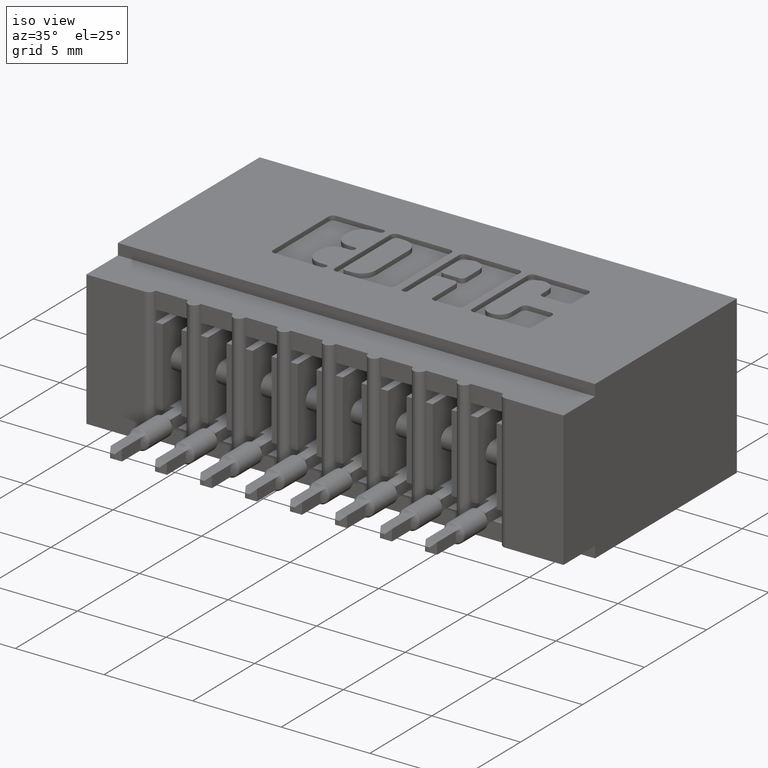
[diagram: clean part render]
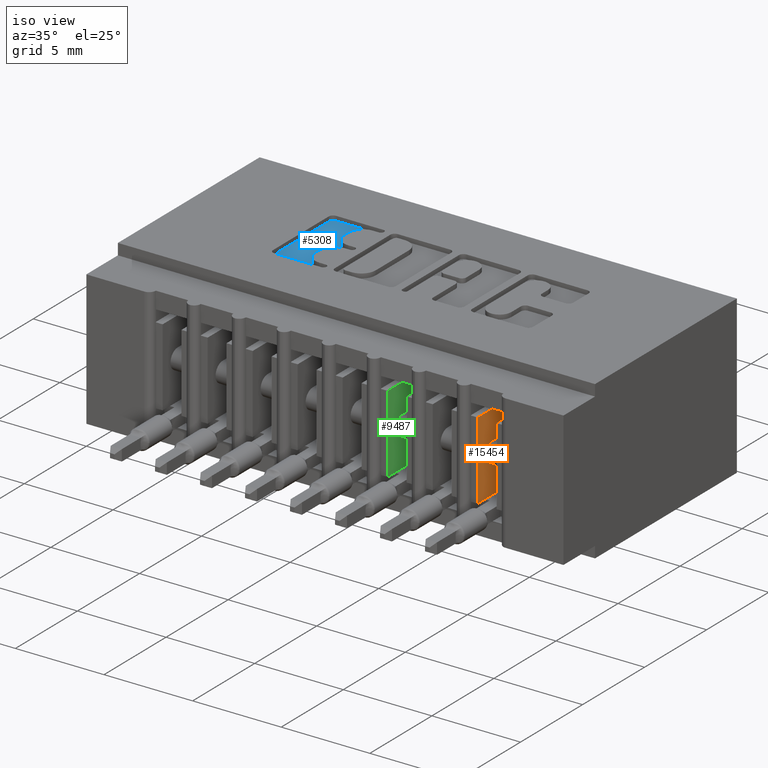
[diagram: same view with three faces highlighted in distinct colors, each labeled with its STEP entity id]
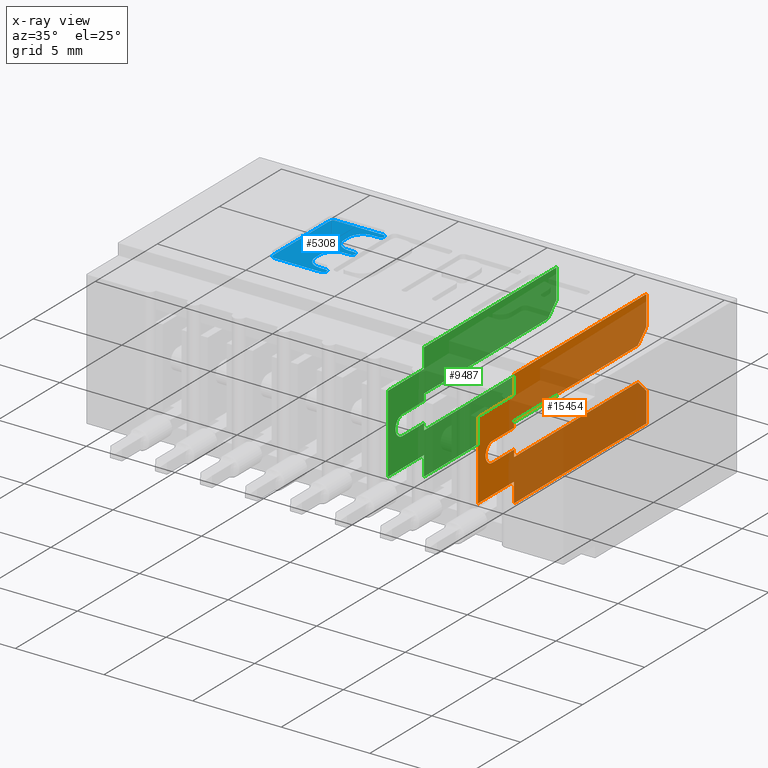
[diagram: x-ray of the same camera — body ghosted, the three highlighted faces saturated]
A machine part, iso view with three faces highlighted in distinct colors.
The next image is the same camera in x-ray (body ghosted, the three faces saturated) — at least one of them is partly hidden behind the body in this view.
Their STEP definitions:

[orange] entity #15454 — the highlighted planar face has unit normal (1, -0, -0).
#189 = ORIENTED_EDGE ( 'NONE', *, *, #17398, .T. ) ;
#252 = CARTESIAN_POINT ( 'NONE',  ( 0.8589999999999996500, 0.01500000000000002700, -0.2615000000000001800 ) ) ;
#352 = VERTEX_POINT ( 'NONE', #17684 ) ;
#543 = CARTESIAN_POINT ( 'NONE',  ( 0.8589999999999996500, 0.1300000000000000000, -0.08850000000000006500 ) ) ;
#696 = VERTEX_POINT ( 'NONE', #1882 ) ;
#870 = VECTOR ( 'NONE', #13364, 39.37007874015748100 ) ;
#1051 = DIRECTION ( 'NONE',  ( 6.851308626328820700E-031, 1.000000000000000000, 1.484699996556664600E-015 ) ) ;
#1064 = VECTOR ( 'NONE', #2760, 39.37007874015748100 ) ;
#1159 = EDGE_CURVE ( 'NONE', #11859, #6540, #2328, .T. ) ;
#1367 = VERTEX_POINT ( 'NONE', #9956 ) ;
#1371 = CARTESIAN_POINT ( 'NONE',  ( 0.8589999999999997600, 0.1300000000000000000, -3.256820044686565700E-017 ) ) ;
#1472 = CARTESIAN_POINT ( 'NONE',  ( 0.8589999999999997600, 0.1300000000000000000, -0.04499999999999988700 ) ) ;
#1611 = VERTEX_POINT ( 'NONE', #8786 ) ;
#1614 = EDGE_CURVE ( 'NONE', #696, #8934, #1870, .T. ) ;
#1870 = CIRCLE ( 'NONE', #4698, 0.02199999999999996400 ) ;
#1882 = CARTESIAN_POINT ( 'NONE',  ( 0.8589999999999997600, 0.06200000000000000000, -0.1969999999999994500 ) ) ;
#2007 = CARTESIAN_POINT ( 'NONE',  ( 0.8589999999999996500, 0.1300000000000000000, -0.2874999999999999200 ) ) ;
#2075 = VECTOR ( 'NONE', #12269, 39.37007874015748100 ) ;
#2328 = LINE ( 'NONE', #12166, #9254 ) ;
#2467 = EDGE_CURVE ( 'NONE', #4367, #1611, #9199, .T. ) ;
#2517 = VECTOR ( 'NONE', #16089, 39.37007874015748100 ) ;
#2760 = DIRECTION ( 'NONE',  ( 2.078529941618992500E-016, 0.0000000000000000000, 1.000000000000000000 ) ) ;
#3063 = CARTESIAN_POINT ( 'NONE',  ( 0.8589999999999997600, 0.5230000000000000200, -0.2120000000000002700 ) ) ;
#3112 = CARTESIAN_POINT ( 'NONE',  ( 0.8589999999999997600, 0.1300000000000001200, -0.1380000000000002600 ) ) ;
#3123 = LINE ( 'NONE', #15578, #16875 ) ;
#3259 = DIRECTION ( 'NONE',  ( 1.232595164407830900E-032, 1.000000000000000000, 0.0000000000000000000 ) ) ;
#3265 = CARTESIAN_POINT ( 'NONE',  ( 0.8590000000006827700, 0.06200000000000000600, -0.1749999999999994600 ) ) ;
#3342 = LINE ( 'NONE', #5843, #6587 ) ;
#3529 = ORIENTED_EDGE ( 'NONE', *, *, #4328, .T. ) ;
#3773 = CARTESIAN_POINT ( 'NONE',  ( 0.8589999999999997600, 0.5500000000000000400, -3.256820044686565700E-017 ) ) ;
#3923 = DIRECTION ( 'NONE',  ( 6.302441459749744600E-032, 1.000000000000000000, 2.439149994343092200E-016 ) ) ;
#3983 = VERTEX_POINT ( 'NONE', #7744 ) ;
#4022 = EDGE_CURVE ( 'NONE', #10255, #696, #12038, .T. ) ;
#4328 = EDGE_CURVE ( 'NONE', #14862, #10650, #9684, .T. ) ;
#4367 = VERTEX_POINT ( 'NONE', #3063 ) ;
#4686 = DIRECTION ( 'NONE',  ( 0.0000000000000000000, 0.0000000000000000000, -1.000000000000000000 ) ) ;
#4698 = AXIS2_PLACEMENT_3D ( 'NONE', #3265, #12898, #4686 ) ;
#4756 = VERTEX_POINT ( 'NONE', #8606 ) ;
#4802 = ORIENTED_EDGE ( 'NONE', *, *, #5040, .T. ) ;
#4819 = CARTESIAN_POINT ( 'NONE',  ( 0.8589999999999996500, 0.1300000000000000000, -0.06250000000000015300 ) ) ;
#4899 = ORIENTED_EDGE ( 'NONE', *, *, #16648, .T. ) ;
#5024 = DIRECTION ( 'NONE',  ( 9.205323678943180200E-032, -1.000000000000000000, 5.021779400118136700E-016 ) ) ;
#5040 = EDGE_CURVE ( 'NONE', #4756, #1367, #5749, .T. ) ;
#5069 = DIRECTION ( 'NONE',  ( 2.078529941618992500E-016, 0.0000000000000000000, 1.000000000000000000 ) ) ;
#5406 = ORIENTED_EDGE ( 'NONE', *, *, #2467, .F. ) ;
#5668 = LINE ( 'NONE', #4819, #8928 ) ;
#5696 = EDGE_CURVE ( 'NONE', #6540, #1367, #6616, .T. ) ;
#5749 = LINE ( 'NONE', #3773, #2517 ) ;
#5788 = CARTESIAN_POINT ( 'NONE',  ( 0.8589999999999996500, 0.1300000000000000000, -0.2874999999999999200 ) ) ;
#5843 = CARTESIAN_POINT ( 'NONE',  ( 0.8589999999999997600, 0.5500000000000000400, -0.1109999999999999500 ) ) ;
#5853 = LINE ( 'NONE', #17537, #9558 ) ;
#5995 = VECTOR ( 'NONE', #9968, 39.37007874015748100 ) ;
#6018 = VERTEX_POINT ( 'NONE', #12802 ) ;
#6118 = DIRECTION ( 'NONE',  ( -2.078529941618992500E-016, 0.0000000000000000000, -1.000000000000000000 ) ) ;
#6124 = LINE ( 'NONE', #11022, #13426 ) ;
#6204 = DIRECTION ( 'NONE',  ( 8.519276487518544600E-016, 0.0000000000000000000, -1.000000000000000000 ) ) ;
#6274 = EDGE_CURVE ( 'NONE', #10487, #13112, #12178, .T. ) ;
#6314 = ORIENTED_EDGE ( 'NONE', *, *, #12276, .F. ) ;
#6451 = EDGE_CURVE ( 'NONE', #4367, #6018, #9443, .T. ) ;
#6540 = VERTEX_POINT ( 'NONE', #1472 ) ;
#6587 = VECTOR ( 'NONE', #10034, 39.37007874015748900 ) ;
#6595 = DIRECTION ( 'NONE',  ( 2.078529941618992500E-016, 2.661669305054499900E-031, 1.000000000000000000 ) ) ;
#6616 = LINE ( 'NONE', #10804, #17125 ) ;
#6819 = LINE ( 'NONE', #17688, #16895 ) ;
#7406 = ORIENTED_EDGE ( 'NONE', *, *, #8372, .F. ) ;
#7447 = DIRECTION ( 'NONE',  ( 4.110785175797292000E-031, -1.000000000000000000, 8.908199979339986800E-016 ) ) ;
#7622 = ORIENTED_EDGE ( 'NONE', *, *, #5696, .F. ) ;
#7744 = CARTESIAN_POINT ( 'NONE',  ( 0.8589999999999996500, 0.01499999999999998900, -0.08849999999999995400 ) ) ;
#7795 = EDGE_LOOP ( 'NONE', ( #16482, #16188, #189, #6314, #4802, #7622, #8647, #15569, #12215, #7406, #4899, #3529, #11755, #16955, #13866, #5406, #8256, #10412, #16402, #17408 ) ) ;
#7802 = CARTESIAN_POINT ( 'NONE',  ( 0.8590000000006827700, 0.1299999999999999200, -0.1969999999999995100 ) ) ;
#8100 = VECTOR ( 'NONE', #5069, 39.37007874015748100 ) ;
#8256 = ORIENTED_EDGE ( 'NONE', *, *, #6451, .T. ) ;
#8319 = DIRECTION ( 'NONE',  ( -1.469742616618067400E-016, 0.7071067811865479100, -0.7071067811865470200 ) ) ;
#8372 = EDGE_CURVE ( 'NONE', #9587, #3983, #11272, .T. ) ;
#8606 = CARTESIAN_POINT ( 'NONE',  ( 0.8589999999999997600, 0.5500000000000000400, -0.1109999999999999200 ) ) ;
#8647 = ORIENTED_EDGE ( 'NONE', *, *, #1159, .F. ) ;
#8757 = CARTESIAN_POINT ( 'NONE',  ( 0.8589999999999996500, 0.1300000000000000600, -0.2615000000000000100 ) ) ;
#8786 = CARTESIAN_POINT ( 'NONE',  ( 0.8589999999999997600, 0.5500000000000000400, -0.2389999999999999100 ) ) ;
#8871 = VECTOR ( 'NONE', #3259, 39.37007874015748100 ) ;
#8928 = VECTOR ( 'NONE', #6204, 39.37007874015748100 ) ;
#8934 = VERTEX_POINT ( 'NONE', #13760 ) ;
#9199 = LINE ( 'NONE', #12385, #16047 ) ;
#9233 = CARTESIAN_POINT ( 'NONE',  ( 0.8589999999999997600, 0.1300000000000001200, -0.1969999999999995100 ) ) ;
#9254 = VECTOR ( 'NONE', #14901, 39.37007874015748100 ) ;
#9310 = LINE ( 'NONE', #10152, #8871 ) ;
#9443 = LINE ( 'NONE', #10916, #2075 ) ;
#9558 = VECTOR ( 'NONE', #1051, 39.37007874015748100 ) ;
#9587 = VERTEX_POINT ( 'NONE', #252 ) ;
#9684 = LINE ( 'NONE', #5788, #5995 ) ;
#9941 = CARTESIAN_POINT ( 'NONE',  ( 0.8589999999962069100, 0.1299999999999999200, -0.1529999999999995000 ) ) ;
#9956 = CARTESIAN_POINT ( 'NONE',  ( 0.8589999999999997600, 0.5500000000000000400, -0.04499999999999978300 ) ) ;
#9968 = DIRECTION ( 'NONE',  ( -4.614608097405849300E-016, -1.313388458492439000E-015, -1.000000000000000000 ) ) ;
#9988 = EDGE_CURVE ( 'NONE', #6018, #10255, #6819, .T. ) ;
#10034 = DIRECTION ( 'NONE',  ( -1.469742616618067900E-016, -0.7071067811865476800, -0.7071067811865472400 ) ) ;
#10152 = CARTESIAN_POINT ( 'NONE',  ( 0.8589999999999997600, 0.1300000000000001200, -0.1380000000000002600 ) ) ;
#10255 = VERTEX_POINT ( 'NONE', #9233 ) ;
#10412 = ORIENTED_EDGE ( 'NONE', *, *, #9988, .T. ) ;
#10487 = VERTEX_POINT ( 'NONE', #9941 ) ;
#10650 = VERTEX_POINT ( 'NONE', #2007 ) ;
#10763 = CARTESIAN_POINT ( 'NONE',  ( 0.8589999999999997600, 0.01499999999999999400, -3.256820044686565700E-017 ) ) ;
#10804 = CARTESIAN_POINT ( 'NONE',  ( 0.8589999999999997600, 1.097617497454388500E-017, -0.04499999999999992200 ) ) ;
#10899 = DIRECTION ( 'NONE',  ( 2.078529941618992500E-016, 0.0000000000000000000, 1.000000000000000000 ) ) ;
#10916 = CARTESIAN_POINT ( 'NONE',  ( 0.8589999999999997600, 0.1300000000000001200, -0.2120000000000002700 ) ) ;
#11010 = CARTESIAN_POINT ( 'NONE',  ( 0.8589999999999996500, 0.1300000000000000000, -0.3049999999999999900 ) ) ;
#11022 = CARTESIAN_POINT ( 'NONE',  ( 0.8589999999999997600, 0.5500000000000000400, -3.256820044686565700E-017 ) ) ;
#11118 = EDGE_CURVE ( 'NONE', #11471, #17331, #3123, .T. ) ;
#11259 = VECTOR ( 'NONE', #7447, 39.37007874015748100 ) ;
#11272 = LINE ( 'NONE', #10763, #14459 ) ;
#11471 = VERTEX_POINT ( 'NONE', #11010 ) ;
#11680 = LINE ( 'NONE', #543, #11259 ) ;
#11755 = ORIENTED_EDGE ( 'NONE', *, *, #14589, .F. ) ;
#11859 = VERTEX_POINT ( 'NONE', #17212 ) ;
#11946 = FACE_OUTER_BOUND ( 'NONE', #7795, .T. ) ;
#12038 = LINE ( 'NONE', #7802, #15224 ) ;
#12087 = LINE ( 'NONE', #1371, #1064 ) ;
#12166 = CARTESIAN_POINT ( 'NONE',  ( 0.8589999999999997600, 0.1300000000000000000, -3.256820044686565700E-017 ) ) ;
#12178 = LINE ( 'NONE', #16061, #8100 ) ;
#12215 = ORIENTED_EDGE ( 'NONE', *, *, #13722, .T. ) ;
#12269 = DIRECTION ( 'NONE',  ( -1.232595164407830900E-032, -1.000000000000000000, 0.0000000000000000000 ) ) ;
#12276 = EDGE_CURVE ( 'NONE', #4756, #13140, #3342, .T. ) ;
#12317 = LINE ( 'NONE', #16131, #870 ) ;
#12385 = CARTESIAN_POINT ( 'NONE',  ( 0.8589999999999997600, 0.5230000000000000200, -0.2119999999999999400 ) ) ;
#12739 = EDGE_CURVE ( 'NONE', #17331, #1611, #6124, .T. ) ;
#12802 = CARTESIAN_POINT ( 'NONE',  ( 0.8589999999999997600, 0.1300000000000001200, -0.2120000000000002700 ) ) ;
#12898 = DIRECTION ( 'NONE',  ( -1.000000000000000000, 1.232595164407830900E-032, 2.078529941618992500E-016 ) ) ;
#12965 = PLANE ( 'NONE',  #15802 ) ;
#13112 = VERTEX_POINT ( 'NONE', #3112 ) ;
#13140 = VERTEX_POINT ( 'NONE', #16927 ) ;
#13234 = EDGE_CURVE ( 'NONE', #11859, #352, #5668, .T. ) ;
#13364 = DIRECTION ( 'NONE',  ( 1.688947342943434700E-031, 1.000000000000000000, 7.532669100177206500E-016 ) ) ;
#13426 = VECTOR ( 'NONE', #16512, 39.37007874015748100 ) ;
#13722 = EDGE_CURVE ( 'NONE', #352, #3983, #11680, .T. ) ;
#13760 = CARTESIAN_POINT ( 'NONE',  ( 0.8590000000006827700, 0.06200000000000000000, -0.1529999999999995000 ) ) ;
#13866 = ORIENTED_EDGE ( 'NONE', *, *, #12739, .T. ) ;
#13896 = EDGE_CURVE ( 'NONE', #8934, #10487, #12317, .T. ) ;
#14075 = CARTESIAN_POINT ( 'NONE',  ( 0.8589999999999996500, 0.5500000000000000400, -0.3050000000000001000 ) ) ;
#14340 = DIRECTION ( 'NONE',  ( 1.000000000000000000, -1.232595164407830900E-032, -2.078529941618992500E-016 ) ) ;
#14459 = VECTOR ( 'NONE', #6595, 39.37007874015748100 ) ;
#14589 = EDGE_CURVE ( 'NONE', #11471, #10650, #12087, .T. ) ;
#14862 = VERTEX_POINT ( 'NONE', #8757 ) ;
#14901 = DIRECTION ( 'NONE',  ( 2.078529941618992500E-016, 0.0000000000000000000, 1.000000000000000000 ) ) ;
#15224 = VECTOR ( 'NONE', #5024, 39.37007874015748100 ) ;
#15454 = ADVANCED_FACE ( 'NONE', ( #11946 ), #12965, .T. ) ;
#15569 = ORIENTED_EDGE ( 'NONE', *, *, #13234, .T. ) ;
#15578 = CARTESIAN_POINT ( 'NONE',  ( 0.8589999999999996500, -9.919209976995239000E-017, -0.3049999999999999400 ) ) ;
#15802 = AXIS2_PLACEMENT_3D ( 'NONE', #17031, #14340, #6118 ) ;
#16047 = VECTOR ( 'NONE', #8319, 39.37007874015748900 ) ;
#16061 = CARTESIAN_POINT ( 'NONE',  ( 0.8589999999999997600, 0.1300000000000001200, -0.1380000000000004000 ) ) ;
#16089 = DIRECTION ( 'NONE',  ( 2.078529941618992500E-016, 0.0000000000000000000, 1.000000000000000000 ) ) ;
#16131 = CARTESIAN_POINT ( 'NONE',  ( 0.8590000000006827700, 0.1299999999999999200, -0.1529999999999995000 ) ) ;
#16188 = ORIENTED_EDGE ( 'NONE', *, *, #6274, .T. ) ;
#16402 = ORIENTED_EDGE ( 'NONE', *, *, #4022, .T. ) ;
#16482 = ORIENTED_EDGE ( 'NONE', *, *, #13896, .T. ) ;
#16512 = DIRECTION ( 'NONE',  ( 2.078529941618992500E-016, 0.0000000000000000000, 1.000000000000000000 ) ) ;
#16648 = EDGE_CURVE ( 'NONE', #9587, #14862, #5853, .T. ) ;
#16875 = VECTOR ( 'NONE', #16945, 39.37007874015748100 ) ;
#16895 = VECTOR ( 'NONE', #10899, 39.37007874015748100 ) ;
#16927 = CARTESIAN_POINT ( 'NONE',  ( 0.8589999999999997600, 0.5230000000000000200, -0.1379999999999999300 ) ) ;
#16945 = DIRECTION ( 'NONE',  ( -5.527199896048053900E-032, 1.000000000000000000, -3.252199992457456200E-016 ) ) ;
#16955 = ORIENTED_EDGE ( 'NONE', *, *, #11118, .T. ) ;
#17031 = CARTESIAN_POINT ( 'NONE',  ( 0.8589999999999997600, -2.218671295934091900E-033, -3.256820044686565700E-017 ) ) ;
#17125 = VECTOR ( 'NONE', #3923, 39.37007874015748100 ) ;
#17212 = CARTESIAN_POINT ( 'NONE',  ( 0.8589999999999996500, 0.1300000000000000000, -0.06250000000000015300 ) ) ;
#17331 = VERTEX_POINT ( 'NONE', #14075 ) ;
#17398 = EDGE_CURVE ( 'NONE', #13112, #13140, #9310, .T. ) ;
#17408 = ORIENTED_EDGE ( 'NONE', *, *, #1614, .T. ) ;
#17537 = CARTESIAN_POINT ( 'NONE',  ( 0.8589999999999996500, 0.1300000000000000600, -0.2615000000000000100 ) ) ;
#17684 = CARTESIAN_POINT ( 'NONE',  ( 0.8589999999999996500, 0.1300000000000000000, -0.08850000000000006500 ) ) ;
#17688 = CARTESIAN_POINT ( 'NONE',  ( 0.8589999999999997600, 0.1300000000000001200, -0.1380000000000004000 ) ) ;

[blue] entity #5308 — the highlighted planar face has unit normal (0, 0, 1).
#162 = DIRECTION ( 'NONE',  ( 0.0000000000000000000, 1.000000000000000000, -0.0000000000000000000 ) ) ;
#213 = VERTEX_POINT ( 'NONE', #3713 ) ;
#256 = EDGE_LOOP ( 'NONE', ( #16182, #4385, #9080, #1798, #7262, #15123, #7137, #1749, #14169, #14689, #9727, #17456, #3585, #5013, #2251, #9899, #1148, #8575, #2395, #8660, #9141 ) ) ;
#537 = CARTESIAN_POINT ( 'NONE',  ( 0.3631336065353355000, 0.2337142671046480400, -0.01000000000000000000 ) ) ;
#721 = DIRECTION ( 'NONE',  ( 1.000000000000000000, 0.0000000000000000000, 0.0000000000000000000 ) ) ;
#885 = AXIS2_PLACEMENT_3D ( 'NONE', #17210, #9029, #721 ) ;
#1148 = ORIENTED_EDGE ( 'NONE', *, *, #2095, .T. ) ;
#1288 = VERTEX_POINT ( 'NONE', #1476 ) ;
#1330 = VERTEX_POINT ( 'NONE', #1530 ) ;
#1437 = AXIS2_PLACEMENT_3D ( 'NONE', #11960, #3708, #13322 ) ;
#1476 = CARTESIAN_POINT ( 'NONE',  ( 0.2490264404161154600, 0.2366589681657900200, -0.01000000000000000000 ) ) ;
#1530 = CARTESIAN_POINT ( 'NONE',  ( 0.3700045756779735700, 0.3250000000000204400, -0.01000000000000000000 ) ) ;
#1562 = PLANE ( 'NONE',  #3329 ) ;
#1608 = VERTEX_POINT ( 'NONE', #16956 ) ;
#1721 = VERTEX_POINT ( 'NONE', #7617 ) ;
#1749 = ORIENTED_EDGE ( 'NONE', *, *, #7469, .T. ) ;
#1798 = ORIENTED_EDGE ( 'NONE', *, *, #13772, .T. ) ;
#1802 = CIRCLE ( 'NONE', #14605, 0.03141014465215624000 ) ;
#1804 = CIRCLE ( 'NONE', #12882, 0.006870969142662229500 ) ;
#1845 = FACE_OUTER_BOUND ( 'NONE', #256, .T. ) ;
#1851 = VECTOR ( 'NONE', #16010, 39.37007874015748100 ) ;
#1893 = DIRECTION ( 'NONE',  ( 1.000000000000000000, 0.0000000000000000000, 0.0000000000000000000 ) ) ;
#1938 = DIRECTION ( 'NONE',  ( 1.000000000000000000, 0.0000000000000000000, 0.0000000000000000000 ) ) ;
#1958 = VERTEX_POINT ( 'NONE', #15387 ) ;
#2095 = EDGE_CURVE ( 'NONE', #13812, #1330, #5100, .T. ) ;
#2148 = CARTESIAN_POINT ( 'NONE',  ( 0.3700045756779977200, 0.2337142671046480400, -0.01000000000000000000 ) ) ;
#2230 = LINE ( 'NONE', #12473, #12351 ) ;
#2251 = ORIENTED_EDGE ( 'NONE', *, *, #12591, .F. ) ;
#2340 = EDGE_CURVE ( 'NONE', #12395, #213, #12199, .T. ) ;
#2392 = EDGE_CURVE ( 'NONE', #12395, #4560, #17324, .T. ) ;
#2395 = ORIENTED_EDGE ( 'NONE', *, *, #17642, .T. ) ;
#2524 = DIRECTION ( 'NONE',  ( 1.000000000000000000, 0.0000000000000000000, 0.0000000000000000000 ) ) ;
#2538 = CARTESIAN_POINT ( 'NONE',  ( 0.0000000000000000000, 0.3318709691426839900, -0.01000000000000000000 ) ) ;
#2756 = AXIS2_PLACEMENT_3D ( 'NONE', #11374, #3108, #12731 ) ;
#2768 = VERTEX_POINT ( 'NONE', #6241 ) ;
#2813 = DIRECTION ( 'NONE',  ( -1.000000000000000000, -1.189163988687022500E-013, 0.0000000000000000000 ) ) ;
#2823 = EDGE_CURVE ( 'NONE', #1330, #1721, #9949, .T. ) ;
#2923 = DIRECTION ( 'NONE',  ( 1.000000000000000000, 7.203446383881649800E-015, 0.0000000000000000000 ) ) ;
#2963 = CARTESIAN_POINT ( 'NONE',  ( 0.0000000000000000000, 0.0000000000000000000, -0.01000000000000000000 ) ) ;
#3028 = CARTESIAN_POINT ( 'NONE',  ( 0.3631336065353355000, 0.2337142671046480400, -0.01000000000000000000 ) ) ;
#3108 = DIRECTION ( 'NONE',  ( -0.0000000000000000000, 0.0000000000000000000, 1.000000000000000000 ) ) ;
#3329 = AXIS2_PLACEMENT_3D ( 'NONE', #2963, #13955, #5745 ) ;
#3585 = ORIENTED_EDGE ( 'NONE', *, *, #4344, .F. ) ;
#3606 = CARTESIAN_POINT ( 'NONE',  ( 0.2588421106199381100, 0.4133410318342102300, -0.01000000000000000000 ) ) ;
#3708 = DIRECTION ( 'NONE',  ( -0.0000000000000000000, 0.0000000000000000000, 1.000000000000000000 ) ) ;
#3713 = CARTESIAN_POINT ( 'NONE',  ( 0.3631336065353514800, 0.4094147637527357800, -0.01000000000000000000 ) ) ;
#3906 = CARTESIAN_POINT ( 'NONE',  ( 0.3496370600050841000, 0.3632811137948584500, -0.01000000000000000000 ) ) ;
#3924 = DIRECTION ( 'NONE',  ( -1.000000000000000000, 0.0000000000000000000, 0.0000000000000000000 ) ) ;
#4307 = CARTESIAN_POINT ( 'NONE',  ( 0.3182269153529278500, 0.0000000000000000000, -0.01000000000000000000 ) ) ;
#4344 = EDGE_CURVE ( 'NONE', #15336, #11464, #13293, .T. ) ;
#4385 = ORIENTED_EDGE ( 'NONE', *, *, #2340, .T. ) ;
#4441 = DIRECTION ( 'NONE',  ( 1.000000000000000000, 0.0000000000000000000, 0.0000000000000000000 ) ) ;
#4445 = VECTOR ( 'NONE', #2813, 39.37007874015748100 ) ;
#4477 = VECTOR ( 'NONE', #2923, 39.37007874015748100 ) ;
#4505 = CARTESIAN_POINT ( 'NONE',  ( 0.3182269153529278500, 0.2719953808994904900, -0.01000000000000000000 ) ) ;
#4532 = VECTOR ( 'NONE', #3924, 39.37007874015748100 ) ;
#4560 = VERTEX_POINT ( 'NONE', #4833 ) ;
#4688 = EDGE_CURVE ( 'NONE', #16870, #2768, #8150, .T. ) ;
#4833 = CARTESIAN_POINT ( 'NONE',  ( 0.3182269153529096500, 0.3780046191005198600, -0.01000000000000000000 ) ) ;
#4903 = EDGE_CURVE ( 'NONE', #10608, #13812, #5117, .T. ) ;
#4979 = DIRECTION ( 'NONE',  ( 1.000000000000000000, 0.0000000000000000000, 0.0000000000000000000 ) ) ;
#5013 = ORIENTED_EDGE ( 'NONE', *, *, #8028, .T. ) ;
#5100 = CIRCLE ( 'NONE', #5257, 0.006870969142663527000 ) ;
#5117 = LINE ( 'NONE', #12904, #12010 ) ;
#5177 = CARTESIAN_POINT ( 'NONE',  ( 0.3496370600050841000, 0.2867188862052006400, -0.01000000000000000000 ) ) ;
#5231 = CARTESIAN_POINT ( 'NONE',  ( 0.0000000000000000000, 0.4094147637527357800, -0.01000000000000000000 ) ) ;
#5257 = AXIS2_PLACEMENT_3D ( 'NONE', #15689, #7482, #17059 ) ;
#5304 = DIRECTION ( 'NONE',  ( 1.000000000000000000, 0.0000000000000000000, 0.0000000000000000000 ) ) ;
#5308 = ADVANCED_FACE ( 'NONE', ( #1845 ), #1562, .T. ) ;
#5400 = VERTEX_POINT ( 'NONE', #7429 ) ;
#5409 = DIRECTION ( 'NONE',  ( -0.0000000000000000000, 0.0000000000000000000, 1.000000000000000000 ) ) ;
#5502 = VERTEX_POINT ( 'NONE', #9015 ) ;
#5566 = EDGE_CURVE ( 'NONE', #10844, #1288, #8549, .T. ) ;
#5745 = DIRECTION ( 'NONE',  ( 1.000000000000000000, 0.0000000000000000000, 0.0000000000000000000 ) ) ;
#5823 = EDGE_CURVE ( 'NONE', #17109, #11464, #15391, .T. ) ;
#5840 = DIRECTION ( 'NONE',  ( -0.0000000000000000000, 0.0000000000000000000, 1.000000000000000000 ) ) ;
#5944 = DIRECTION ( 'NONE',  ( -0.0000000000000000000, 0.0000000000000000000, 1.000000000000000000 ) ) ;
#6241 = CARTESIAN_POINT ( 'NONE',  ( 0.3631336064154144200, 0.2268432979619858000, -0.01000000000000000000 ) ) ;
#6331 = LINE ( 'NONE', #4307, #12767 ) ;
#6410 = CARTESIAN_POINT ( 'NONE',  ( 0.2490264404161154600, 0.0000000000000000000, -0.01000000000000000000 ) ) ;
#6581 = DIRECTION ( 'NONE',  ( 1.000000000000000000, 0.0000000000000000000, 0.0000000000000000000 ) ) ;
#6718 = CARTESIAN_POINT ( 'NONE',  ( 0.3631336064154144200, 0.2405852362473102900, -0.01000000000000000000 ) ) ;
#6807 = AXIS2_PLACEMENT_3D ( 'NONE', #14147, #5944, #15525 ) ;
#6881 = AXIS2_PLACEMENT_3D ( 'NONE', #3606, #13214, #4979 ) ;
#7021 = CIRCLE ( 'NONE', #6881, 0.009815670203822599700 ) ;
#7137 = ORIENTED_EDGE ( 'NONE', *, *, #5566, .T. ) ;
#7262 = ORIENTED_EDGE ( 'NONE', *, *, #12047, .T. ) ;
#7396 = CIRCLE ( 'NONE', #9503, 0.006870969142662229500 ) ;
#7429 = CARTESIAN_POINT ( 'NONE',  ( 0.3496370600050841000, 0.3318709691426839900, -0.01000000000000000000 ) ) ;
#7469 = EDGE_CURVE ( 'NONE', #1288, #16870, #14500, .T. ) ;
#7482 = DIRECTION ( 'NONE',  ( -0.0000000000000000000, 0.0000000000000000000, 1.000000000000000000 ) ) ;
#7617 = CARTESIAN_POINT ( 'NONE',  ( 0.3631336065353100200, 0.3318709691426839900, -0.01000000000000000000 ) ) ;
#7702 = VERTEX_POINT ( 'NONE', #2148 ) ;
#8028 = EDGE_CURVE ( 'NONE', #15336, #1958, #6331, .T. ) ;
#8048 = CARTESIAN_POINT ( 'NONE',  ( 0.0000000000000000000, 0.4231567020380327900, -0.01000000000000000000 ) ) ;
#8150 = LINE ( 'NONE', #11195, #4477 ) ;
#8170 = EDGE_CURVE ( 'NONE', #2768, #7702, #7396, .T. ) ;
#8244 = CARTESIAN_POINT ( 'NONE',  ( 0.3496370600051096300, 0.2405852362473086800, -0.01000000000000000000 ) ) ;
#8549 = LINE ( 'NONE', #6410, #1851 ) ;
#8575 = ORIENTED_EDGE ( 'NONE', *, *, #2823, .T. ) ;
#8619 = AXIS2_PLACEMENT_3D ( 'NONE', #13630, #5409, #15005 ) ;
#8641 = LINE ( 'NONE', #2538, #4532 ) ;
#8660 = ORIENTED_EDGE ( 'NONE', *, *, #16708, .F. ) ;
#9015 = CARTESIAN_POINT ( 'NONE',  ( 0.3700045756779998800, 0.4162857328953863400, -0.01000000000000000000 ) ) ;
#9029 = DIRECTION ( 'NONE',  ( -0.0000000000000000000, 0.0000000000000000000, 1.000000000000000000 ) ) ;
#9080 = ORIENTED_EDGE ( 'NONE', *, *, #13650, .T. ) ;
#9141 = ORIENTED_EDGE ( 'NONE', *, *, #15860, .T. ) ;
#9458 = DIRECTION ( 'NONE',  ( -1.000000000000000000, 0.0000000000000000000, 0.0000000000000000000 ) ) ;
#9503 = AXIS2_PLACEMENT_3D ( 'NONE', #537, #10225, #1938 ) ;
#9727 = ORIENTED_EDGE ( 'NONE', *, *, #11613, .T. ) ;
#9899 = ORIENTED_EDGE ( 'NONE', *, *, #4903, .T. ) ;
#9949 = CIRCLE ( 'NONE', #1437, 0.006870969142663527000 ) ;
#9970 = CARTESIAN_POINT ( 'NONE',  ( 0.3631336065353513700, 0.4231567020380327900, -0.01000000000000000000 ) ) ;
#10184 = EDGE_CURVE ( 'NONE', #1608, #10844, #7021, .T. ) ;
#10225 = DIRECTION ( 'NONE',  ( -0.0000000000000000000, 0.0000000000000000000, 1.000000000000000000 ) ) ;
#10233 = CARTESIAN_POINT ( 'NONE',  ( 0.3496370600050841000, 0.3181290308573568900, -0.01000000000000000000 ) ) ;
#10608 = VERTEX_POINT ( 'NONE', #10233 ) ;
#10844 = VERTEX_POINT ( 'NONE', #17669 ) ;
#10911 = LINE ( 'NONE', #8048, #17733 ) ;
#11195 = CARTESIAN_POINT ( 'NONE',  ( -1.634053534412035500E-015, 0.2268432979619831900, -0.01000000000000000000 ) ) ;
#11374 = CARTESIAN_POINT ( 'NONE',  ( 0.2588421106199222400, 0.2366589681657900200, -0.01000000000000000000 ) ) ;
#11464 = VERTEX_POINT ( 'NONE', #8244 ) ;
#11613 = EDGE_CURVE ( 'NONE', #7702, #17109, #1804, .T. ) ;
#11761 = VECTOR ( 'NONE', #2524, 39.37007874015748100 ) ;
#11960 = CARTESIAN_POINT ( 'NONE',  ( 0.3631336065353100200, 0.3250000000000204400, -0.01000000000000000000 ) ) ;
#12010 = VECTOR ( 'NONE', #1893, 39.37007874015748100 ) ;
#12047 = EDGE_CURVE ( 'NONE', #12260, #1608, #10911, .T. ) ;
#12199 = LINE ( 'NONE', #5231, #11761 ) ;
#12260 = VERTEX_POINT ( 'NONE', #9970 ) ;
#12351 = VECTOR ( 'NONE', #13828, 39.37007874015748100 ) ;
#12395 = VERTEX_POINT ( 'NONE', #15758 ) ;
#12473 = CARTESIAN_POINT ( 'NONE',  ( 0.3182269153529096500, 0.0000000000000000000, -0.01000000000000000000 ) ) ;
#12591 = EDGE_CURVE ( 'NONE', #10608, #1958, #1802, .T. ) ;
#12669 = DIRECTION ( 'NONE',  ( -0.0000000000000000000, 0.0000000000000000000, 1.000000000000000000 ) ) ;
#12731 = DIRECTION ( 'NONE',  ( 1.000000000000000000, 0.0000000000000000000, 0.0000000000000000000 ) ) ;
#12767 = VECTOR ( 'NONE', #162, 39.37007874015748100 ) ;
#12882 = AXIS2_PLACEMENT_3D ( 'NONE', #3028, #12669, #4441 ) ;
#12904 = CARTESIAN_POINT ( 'NONE',  ( 0.0000000000000000000, 0.3181290308573568900, -0.01000000000000000000 ) ) ;
#13214 = DIRECTION ( 'NONE',  ( -0.0000000000000000000, 0.0000000000000000000, 1.000000000000000000 ) ) ;
#13293 = CIRCLE ( 'NONE', #16662, 0.03141014465218178200 ) ;
#13322 = DIRECTION ( 'NONE',  ( 1.000000000000000000, 0.0000000000000000000, 0.0000000000000000000 ) ) ;
#13518 = DIRECTION ( 'NONE',  ( -0.0000000000000000000, 0.0000000000000000000, 1.000000000000000000 ) ) ;
#13630 = CARTESIAN_POINT ( 'NONE',  ( 0.3496370600051255700, 0.3780046191005198600, -0.01000000000000000000 ) ) ;
#13650 = EDGE_CURVE ( 'NONE', #213, #5502, #16180, .T. ) ;
#13772 = EDGE_CURVE ( 'NONE', #5502, #12260, #14009, .T. ) ;
#13812 = VERTEX_POINT ( 'NONE', #17270 ) ;
#13828 = DIRECTION ( 'NONE',  ( 0.0000000000000000000, 1.000000000000000000, -0.0000000000000000000 ) ) ;
#13955 = DIRECTION ( 'NONE',  ( -0.0000000000000000000, 0.0000000000000000000, 1.000000000000000000 ) ) ;
#14009 = CIRCLE ( 'NONE', #885, 0.006870969142648501700 ) ;
#14055 = CARTESIAN_POINT ( 'NONE',  ( 0.3182269153529096500, 0.3632811137948584500, -0.01000000000000000000 ) ) ;
#14062 = CARTESIAN_POINT ( 'NONE',  ( 0.3496370600051096300, 0.2719953808994904900, -0.01000000000000000000 ) ) ;
#14147 = CARTESIAN_POINT ( 'NONE',  ( 0.3631336065353513700, 0.4162857328953863400, -0.01000000000000000000 ) ) ;
#14169 = ORIENTED_EDGE ( 'NONE', *, *, #4688, .T. ) ;
#14452 = CARTESIAN_POINT ( 'NONE',  ( 0.2588421106199186300, 0.2268432979619850500, -0.01000000000000000000 ) ) ;
#14500 = CIRCLE ( 'NONE', #2756, 0.009815670203805868300 ) ;
#14605 = AXIS2_PLACEMENT_3D ( 'NONE', #5177, #14790, #6581 ) ;
#14689 = ORIENTED_EDGE ( 'NONE', *, *, #8170, .T. ) ;
#14758 = VERTEX_POINT ( 'NONE', #14055 ) ;
#14790 = DIRECTION ( 'NONE',  ( -0.0000000000000000000, 0.0000000000000000000, 1.000000000000000000 ) ) ;
#15005 = DIRECTION ( 'NONE',  ( 1.000000000000000000, 0.0000000000000000000, 0.0000000000000000000 ) ) ;
#15071 = CARTESIAN_POINT ( 'NONE',  ( -2.860952991550097500E-014, 0.2405852362472671000, -0.01000000000000000000 ) ) ;
#15123 = ORIENTED_EDGE ( 'NONE', *, *, #10184, .T. ) ;
#15336 = VERTEX_POINT ( 'NONE', #4505 ) ;
#15387 = CARTESIAN_POINT ( 'NONE',  ( 0.3182269153529278500, 0.2867188862052006400, -0.01000000000000000000 ) ) ;
#15391 = LINE ( 'NONE', #15071, #4445 ) ;
#15446 = DIRECTION ( 'NONE',  ( 1.000000000000000000, 0.0000000000000000000, 0.0000000000000000000 ) ) ;
#15525 = DIRECTION ( 'NONE',  ( 1.000000000000000000, 0.0000000000000000000, 0.0000000000000000000 ) ) ;
#15689 = CARTESIAN_POINT ( 'NONE',  ( 0.3631336065353100200, 0.3250000000000204400, -0.01000000000000000000 ) ) ;
#15758 = CARTESIAN_POINT ( 'NONE',  ( 0.3496370600051255700, 0.4094147637527357800, -0.01000000000000000000 ) ) ;
#15860 = EDGE_CURVE ( 'NONE', #14758, #4560, #2230, .T. ) ;
#16010 = DIRECTION ( 'NONE',  ( 0.0000000000000000000, -1.000000000000000000, 0.0000000000000000000 ) ) ;
#16180 = CIRCLE ( 'NONE', #6807, 0.006870969142648501700 ) ;
#16182 = ORIENTED_EDGE ( 'NONE', *, *, #2392, .F. ) ;
#16376 = CIRCLE ( 'NONE', #17184, 0.03141014465217447500 ) ;
#16662 = AXIS2_PLACEMENT_3D ( 'NONE', #14062, #5840, #15446 ) ;
#16708 = EDGE_CURVE ( 'NONE', #14758, #5400, #16376, .T. ) ;
#16870 = VERTEX_POINT ( 'NONE', #14452 ) ;
#16956 = CARTESIAN_POINT ( 'NONE',  ( 0.2588421106199381100, 0.4231567020380327900, -0.01000000000000000000 ) ) ;
#17059 = DIRECTION ( 'NONE',  ( 1.000000000000000000, 0.0000000000000000000, 0.0000000000000000000 ) ) ;
#17109 = VERTEX_POINT ( 'NONE', #6718 ) ;
#17184 = AXIS2_PLACEMENT_3D ( 'NONE', #3906, #13518, #5304 ) ;
#17210 = CARTESIAN_POINT ( 'NONE',  ( 0.3631336065353513700, 0.4162857328953863400, -0.01000000000000000000 ) ) ;
#17270 = CARTESIAN_POINT ( 'NONE',  ( 0.3631336064153889400, 0.3181290308573568900, -0.01000000000000000000 ) ) ;
#17324 = CIRCLE ( 'NONE', #8619, 0.03141014465221592800 ) ;
#17456 = ORIENTED_EDGE ( 'NONE', *, *, #5823, .T. ) ;
#17642 = EDGE_CURVE ( 'NONE', #1721, #5400, #8641, .T. ) ;
#17669 = CARTESIAN_POINT ( 'NONE',  ( 0.2490264404161154600, 0.4133410318342102300, -0.01000000000000000000 ) ) ;
#17733 = VECTOR ( 'NONE', #9458, 39.37007874015748100 ) ;

[green] entity #9487 — the highlighted planar face has unit normal (1, -0, -0).
#46 = CARTESIAN_POINT ( 'NONE',  ( 0.6589999999999997000, 0.1300000000000000600, -0.2615000000000000100 ) ) ;
#106 = VECTOR ( 'NONE', #13143, 39.37007874015748100 ) ;
#146 = VECTOR ( 'NONE', #12435, 39.37007874015748100 ) ;
#200 = ORIENTED_EDGE ( 'NONE', *, *, #4974, .F. ) ;
#328 = EDGE_CURVE ( 'NONE', #13176, #14905, #7978, .T. ) ;
#477 = VERTEX_POINT ( 'NONE', #46 ) ;
#515 = CARTESIAN_POINT ( 'NONE',  ( 0.6589999999999997000, 0.1300000000000000000, -3.256820044686565700E-017 ) ) ;
#518 = CARTESIAN_POINT ( 'NONE',  ( 0.6589999999999997000, 0.1300000000000001200, -0.1380000000000003700 ) ) ;
#716 = ORIENTED_EDGE ( 'NONE', *, *, #17635, .T. ) ;
#974 = EDGE_CURVE ( 'NONE', #9538, #1171, #1237, .T. ) ;
#1171 = VERTEX_POINT ( 'NONE', #8084 ) ;
#1237 = LINE ( 'NONE', #12933, #8167 ) ;
#1360 = DIRECTION ( 'NONE',  ( 1.000000000000000000, -1.232595164407830900E-032, -2.078529941618992500E-016 ) ) ;
#1598 = LINE ( 'NONE', #515, #15814 ) ;
#1617 = VECTOR ( 'NONE', #7671, 39.37007874015748100 ) ;
#1640 = CARTESIAN_POINT ( 'NONE',  ( 0.6589999999999997000, 0.5500000000000000400, -3.256820044686565700E-017 ) ) ;
#1699 = VERTEX_POINT ( 'NONE', #14435 ) ;
#1751 = VERTEX_POINT ( 'NONE', #7799 ) ;
#1832 = VECTOR ( 'NONE', #5970, 39.37007874015748100 ) ;
#2137 = CARTESIAN_POINT ( 'NONE',  ( 0.6589999999999997000, 1.097617497454388500E-017, -0.04499999999999992200 ) ) ;
#2152 = EDGE_CURVE ( 'NONE', #8793, #477, #14322, .T. ) ;
#2479 = DIRECTION ( 'NONE',  ( 1.688947342943434500E-031, 1.000000000000000000, 7.532669100177202600E-016 ) ) ;
#2511 = VERTEX_POINT ( 'NONE', #11200 ) ;
#2667 = LINE ( 'NONE', #14159, #10463 ) ;
#2771 = VERTEX_POINT ( 'NONE', #7633 ) ;
#3268 = LINE ( 'NONE', #518, #10192 ) ;
#3395 = VERTEX_POINT ( 'NONE', #3607 ) ;
#3569 = LINE ( 'NONE', #11142, #17730 ) ;
#3605 = VECTOR ( 'NONE', #15138, 39.37007874015748100 ) ;
#3607 = CARTESIAN_POINT ( 'NONE',  ( 0.6589999999999997000, 0.1300000000000001200, -0.2120000000000002700 ) ) ;
#3637 = EDGE_CURVE ( 'NONE', #477, #2511, #7528, .T. ) ;
#3655 = ORIENTED_EDGE ( 'NONE', *, *, #5555, .T. ) ;
#3775 = ORIENTED_EDGE ( 'NONE', *, *, #974, .T. ) ;
#4297 = VECTOR ( 'NONE', #5283, 39.37007874015748900 ) ;
#4482 = DIRECTION ( 'NONE',  ( -1.232595164407830900E-032, -1.000000000000000000, 0.0000000000000000000 ) ) ;
#4618 = DIRECTION ( 'NONE',  ( -1.000000000000000000, 1.232595164407830900E-032, 2.078529941618992500E-016 ) ) ;
#4886 = DIRECTION ( 'NONE',  ( 6.851308626328820700E-031, 1.000000000000000000, 1.484699996556664600E-015 ) ) ;
#4964 = VECTOR ( 'NONE', #2479, 39.37007874015748100 ) ;
#4974 = EDGE_CURVE ( 'NONE', #5858, #5038, #14774, .T. ) ;
#5038 = VERTEX_POINT ( 'NONE', #17440 ) ;
#5134 = ORIENTED_EDGE ( 'NONE', *, *, #11940, .T. ) ;
#5283 = DIRECTION ( 'NONE',  ( -1.469742616618067400E-016, 0.7071067811865479100, -0.7071067811865470200 ) ) ;
#5306 = LINE ( 'NONE', #6427, #12191 ) ;
#5312 = LINE ( 'NONE', #11818, #1617 ) ;
#5555 = EDGE_CURVE ( 'NONE', #9074, #5733, #5312, .T. ) ;
#5733 = VERTEX_POINT ( 'NONE', #12172 ) ;
#5744 = LINE ( 'NONE', #17292, #9872 ) ;
#5845 = EDGE_CURVE ( 'NONE', #8072, #2511, #8125, .T. ) ;
#5858 = VERTEX_POINT ( 'NONE', #9779 ) ;
#5970 = DIRECTION ( 'NONE',  ( -5.527199896048053900E-032, 1.000000000000000000, -3.252199992457456200E-016 ) ) ;
#6016 = EDGE_CURVE ( 'NONE', #8072, #6945, #16051, .T. ) ;
#6366 = CARTESIAN_POINT ( 'NONE',  ( 0.6589999999998620300, 0.1299999999999999200, -0.1529999999999995000 ) ) ;
#6427 = CARTESIAN_POINT ( 'NONE',  ( 0.6589999999999997000, 0.1300000000000001200, -0.1380000000000003700 ) ) ;
#6675 = CARTESIAN_POINT ( 'NONE',  ( 0.6589999999999997000, 0.5230000000000000200, -0.2119999999999999400 ) ) ;
#6914 = VECTOR ( 'NONE', #8534, 39.37007874015748100 ) ;
#6945 = VERTEX_POINT ( 'NONE', #12080 ) ;
#6952 = ORIENTED_EDGE ( 'NONE', *, *, #2152, .T. ) ;
#7000 = VECTOR ( 'NONE', #4482, 39.37007874015748100 ) ;
#7134 = LINE ( 'NONE', #16143, #17645 ) ;
#7341 = LINE ( 'NONE', #1640, #6914 ) ;
#7402 = CARTESIAN_POINT ( 'NONE',  ( 0.6589999999999997000, 0.5230000000000000200, -0.2120000000000002700 ) ) ;
#7484 = EDGE_LOOP ( 'NONE', ( #716, #5134, #3775, #7492, #15075, #200, #9120, #3655, #7847, #10135, #6952, #10926, #12330, #13228, #17158, #8516, #15866, #13366, #15946, #16403 ) ) ;
#7492 = ORIENTED_EDGE ( 'NONE', *, *, #9786, .F. ) ;
#7528 = LINE ( 'NONE', #11067, #146 ) ;
#7539 = EDGE_CURVE ( 'NONE', #8793, #1751, #2667, .T. ) ;
#7633 = CARTESIAN_POINT ( 'NONE',  ( 0.6589999999998620300, 0.06200000000000000000, -0.1529999999999994700 ) ) ;
#7635 = AXIS2_PLACEMENT_3D ( 'NONE', #12842, #4618, #14192 ) ;
#7671 = DIRECTION ( 'NONE',  ( 8.519276487518544600E-016, 0.0000000000000000000, -1.000000000000000000 ) ) ;
#7799 = CARTESIAN_POINT ( 'NONE',  ( 0.6589999999999997000, 0.01499999999999998900, -0.08849999999999995400 ) ) ;
#7847 = ORIENTED_EDGE ( 'NONE', *, *, #10433, .T. ) ;
#7978 = LINE ( 'NONE', #6675, #4297 ) ;
#8050 = CARTESIAN_POINT ( 'NONE',  ( 0.6589999999999997000, 0.01500000000000002700, -0.2615000000000001800 ) ) ;
#8072 = VERTEX_POINT ( 'NONE', #9935 ) ;
#8084 = CARTESIAN_POINT ( 'NONE',  ( 0.6589999999999997000, 0.5230000000000000200, -0.1379999999999999600 ) ) ;
#8125 = LINE ( 'NONE', #11094, #14957 ) ;
#8141 = EDGE_CURVE ( 'NONE', #17345, #2771, #11923, .T. ) ;
#8167 = VECTOR ( 'NONE', #14305, 39.37007874015748100 ) ;
#8516 = ORIENTED_EDGE ( 'NONE', *, *, #328, .F. ) ;
#8534 = DIRECTION ( 'NONE',  ( 2.078529941618992500E-016, 0.0000000000000000000, 1.000000000000000000 ) ) ;
#8632 = EDGE_CURVE ( 'NONE', #3395, #1699, #3268, .T. ) ;
#8793 = VERTEX_POINT ( 'NONE', #8050 ) ;
#8923 = VERTEX_POINT ( 'NONE', #11044 ) ;
#9074 = VERTEX_POINT ( 'NONE', #12703 ) ;
#9103 = DIRECTION ( 'NONE',  ( -1.469742616618067900E-016, -0.7071067811865476800, -0.7071067811865472400 ) ) ;
#9120 = ORIENTED_EDGE ( 'NONE', *, *, #12365, .F. ) ;
#9379 = CARTESIAN_POINT ( 'NONE',  ( 0.6589999999998620300, 0.1299999999999999200, -0.1529999999999995000 ) ) ;
#9487 = ADVANCED_FACE ( 'NONE', ( #10949 ), #17818, .T. ) ;
#9518 = EDGE_CURVE ( 'NONE', #1699, #17345, #14563, .T. ) ;
#9538 = VERTEX_POINT ( 'NONE', #16518 ) ;
#9779 = CARTESIAN_POINT ( 'NONE',  ( 0.6589999999999997000, 0.1300000000000000000, -0.04499999999999988700 ) ) ;
#9786 = EDGE_CURVE ( 'NONE', #8923, #1171, #5744, .T. ) ;
#9872 = VECTOR ( 'NONE', #9103, 39.37007874015748900 ) ;
#9935 = CARTESIAN_POINT ( 'NONE',  ( 0.6589999999999997000, 0.1300000000000000000, -0.3049999999999999900 ) ) ;
#10135 = ORIENTED_EDGE ( 'NONE', *, *, #7539, .F. ) ;
#10192 = VECTOR ( 'NONE', #17006, 39.37007874015748100 ) ;
#10433 = EDGE_CURVE ( 'NONE', #5733, #1751, #3569, .T. ) ;
#10463 = VECTOR ( 'NONE', #15543, 39.37007874015748100 ) ;
#10530 = DIRECTION ( 'NONE',  ( 2.078529941618992500E-016, 0.0000000000000000000, 1.000000000000000000 ) ) ;
#10692 = LINE ( 'NONE', #15398, #7000 ) ;
#10926 = ORIENTED_EDGE ( 'NONE', *, *, #3637, .T. ) ;
#10949 = FACE_OUTER_BOUND ( 'NONE', #7484, .T. ) ;
#11026 = DIRECTION ( 'NONE',  ( -2.078529941618992500E-016, 0.0000000000000000000, -1.000000000000000000 ) ) ;
#11044 = CARTESIAN_POINT ( 'NONE',  ( 0.6589999999999997000, 0.5500000000000000400, -0.1109999999999999700 ) ) ;
#11067 = CARTESIAN_POINT ( 'NONE',  ( 0.6589999999999997000, 0.1300000000000000000, -0.2874999999999999200 ) ) ;
#11094 = CARTESIAN_POINT ( 'NONE',  ( 0.6589999999999997000, 0.1300000000000000000, -3.256820044686565700E-017 ) ) ;
#11142 = CARTESIAN_POINT ( 'NONE',  ( 0.6589999999999997000, 0.1300000000000000000, -0.08850000000000006500 ) ) ;
#11200 = CARTESIAN_POINT ( 'NONE',  ( 0.6589999999999997000, 0.1300000000000000000, -0.2874999999999999200 ) ) ;
#11743 = CARTESIAN_POINT ( 'NONE',  ( 0.6589999999999997000, 0.1300000000000000600, -0.2615000000000000100 ) ) ;
#11818 = CARTESIAN_POINT ( 'NONE',  ( 0.6589999999999997000, 0.1300000000000000000, -0.06250000000000015300 ) ) ;
#11923 = CIRCLE ( 'NONE', #7635, 0.02199999999999996400 ) ;
#11940 = EDGE_CURVE ( 'NONE', #15582, #9538, #5306, .T. ) ;
#12079 = DIRECTION ( 'NONE',  ( 2.078529941618992500E-016, 0.0000000000000000000, 1.000000000000000000 ) ) ;
#12080 = CARTESIAN_POINT ( 'NONE',  ( 0.6589999999999997000, 0.5500000000000000400, -0.3050000000000001000 ) ) ;
#12172 = CARTESIAN_POINT ( 'NONE',  ( 0.6589999999999997000, 0.1300000000000000000, -0.08850000000000006500 ) ) ;
#12191 = VECTOR ( 'NONE', #10530, 39.37007874015748100 ) ;
#12262 = EDGE_CURVE ( 'NONE', #13176, #3395, #10692, .T. ) ;
#12330 = ORIENTED_EDGE ( 'NONE', *, *, #5845, .F. ) ;
#12365 = EDGE_CURVE ( 'NONE', #9074, #5858, #1598, .T. ) ;
#12435 = DIRECTION ( 'NONE',  ( -4.614608097405849300E-016, -1.313388458492439000E-015, -1.000000000000000000 ) ) ;
#12454 = DIRECTION ( 'NONE',  ( 2.078529941618992500E-016, 0.0000000000000000000, 1.000000000000000000 ) ) ;
#12703 = CARTESIAN_POINT ( 'NONE',  ( 0.6589999999999997000, 0.1300000000000000000, -0.06250000000000015300 ) ) ;
#12842 = CARTESIAN_POINT ( 'NONE',  ( 0.6589999999998620300, 0.06200000000000000600, -0.1749999999999994300 ) ) ;
#12933 = CARTESIAN_POINT ( 'NONE',  ( 0.6589999999999997000, 0.1300000000000001200, -0.1380000000000002600 ) ) ;
#13143 = DIRECTION ( 'NONE',  ( 6.302441459749744600E-032, 1.000000000000000000, 2.439149994343092200E-016 ) ) ;
#13176 = VERTEX_POINT ( 'NONE', #7402 ) ;
#13228 = ORIENTED_EDGE ( 'NONE', *, *, #6016, .T. ) ;
#13366 = ORIENTED_EDGE ( 'NONE', *, *, #8632, .T. ) ;
#13741 = CARTESIAN_POINT ( 'NONE',  ( 0.6589999999998620300, 0.1299999999999999200, -0.1969999999999994500 ) ) ;
#14159 = CARTESIAN_POINT ( 'NONE',  ( 0.6589999999999997000, 0.01499999999999999400, -3.256820044686565700E-017 ) ) ;
#14163 = CARTESIAN_POINT ( 'NONE',  ( 0.6589999999999997000, -9.919209976995239000E-017, -0.3049999999999999400 ) ) ;
#14192 = DIRECTION ( 'NONE',  ( 0.0000000000000000000, 0.0000000000000000000, -1.000000000000000000 ) ) ;
#14305 = DIRECTION ( 'NONE',  ( 1.232595164407830900E-032, 1.000000000000000000, 0.0000000000000000000 ) ) ;
#14322 = LINE ( 'NONE', #11743, #17544 ) ;
#14435 = CARTESIAN_POINT ( 'NONE',  ( 0.6589999999999997000, 0.1300000000000001200, -0.1969999999999994500 ) ) ;
#14563 = LINE ( 'NONE', #13741, #3605 ) ;
#14774 = LINE ( 'NONE', #2137, #106 ) ;
#14905 = VERTEX_POINT ( 'NONE', #17133 ) ;
#14957 = VECTOR ( 'NONE', #12454, 39.37007874015748100 ) ;
#15069 = CARTESIAN_POINT ( 'NONE',  ( 0.6589999999999997000, -2.218671295934091900E-033, -3.256820044686565700E-017 ) ) ;
#15075 = ORIENTED_EDGE ( 'NONE', *, *, #17306, .T. ) ;
#15138 = DIRECTION ( 'NONE',  ( 9.205323678943180200E-032, -1.000000000000000000, 5.021779400118136700E-016 ) ) ;
#15253 = AXIS2_PLACEMENT_3D ( 'NONE', #15069, #1360, #11026 ) ;
#15398 = CARTESIAN_POINT ( 'NONE',  ( 0.6589999999999997000, 0.1300000000000001200, -0.2120000000000002700 ) ) ;
#15460 = CARTESIAN_POINT ( 'NONE',  ( 0.6589999999999997000, 0.06200000000000000000, -0.1969999999999994500 ) ) ;
#15543 = DIRECTION ( 'NONE',  ( 2.078529941618992500E-016, 2.661669305054499900E-031, 1.000000000000000000 ) ) ;
#15582 = VERTEX_POINT ( 'NONE', #6366 ) ;
#15696 = DIRECTION ( 'NONE',  ( 2.078529941618992500E-016, 0.0000000000000000000, 1.000000000000000000 ) ) ;
#15814 = VECTOR ( 'NONE', #15696, 39.37007874015748100 ) ;
#15866 = ORIENTED_EDGE ( 'NONE', *, *, #12262, .T. ) ;
#15925 = LINE ( 'NONE', #9379, #4964 ) ;
#15946 = ORIENTED_EDGE ( 'NONE', *, *, #9518, .T. ) ;
#16051 = LINE ( 'NONE', #14163, #1832 ) ;
#16143 = CARTESIAN_POINT ( 'NONE',  ( 0.6589999999999997000, 0.5500000000000000400, -3.256820044686565700E-017 ) ) ;
#16403 = ORIENTED_EDGE ( 'NONE', *, *, #8141, .T. ) ;
#16518 = CARTESIAN_POINT ( 'NONE',  ( 0.6589999999999997000, 0.1300000000000001200, -0.1380000000000002600 ) ) ;
#16615 = DIRECTION ( 'NONE',  ( 4.110785175797292000E-031, -1.000000000000000000, 8.908199979339986800E-016 ) ) ;
#17006 = DIRECTION ( 'NONE',  ( 2.078529941618992500E-016, 0.0000000000000000000, 1.000000000000000000 ) ) ;
#17075 = EDGE_CURVE ( 'NONE', #6945, #14905, #7134, .T. ) ;
#17133 = CARTESIAN_POINT ( 'NONE',  ( 0.6589999999999997000, 0.5500000000000000400, -0.2389999999999999600 ) ) ;
#17158 = ORIENTED_EDGE ( 'NONE', *, *, #17075, .T. ) ;
#17292 = CARTESIAN_POINT ( 'NONE',  ( 0.6589999999999997000, 0.5500000000000001600, -0.1109999999999999200 ) ) ;
#17306 = EDGE_CURVE ( 'NONE', #8923, #5038, #7341, .T. ) ;
#17345 = VERTEX_POINT ( 'NONE', #15460 ) ;
#17440 = CARTESIAN_POINT ( 'NONE',  ( 0.6589999999999997000, 0.5500000000000000400, -0.04499999999999978300 ) ) ;
#17544 = VECTOR ( 'NONE', #4886, 39.37007874015748100 ) ;
#17635 = EDGE_CURVE ( 'NONE', #2771, #15582, #15925, .T. ) ;
#17645 = VECTOR ( 'NONE', #12079, 39.37007874015748100 ) ;
#17730 = VECTOR ( 'NONE', #16615, 39.37007874015748100 ) ;
#17818 = PLANE ( 'NONE',  #15253 ) ;